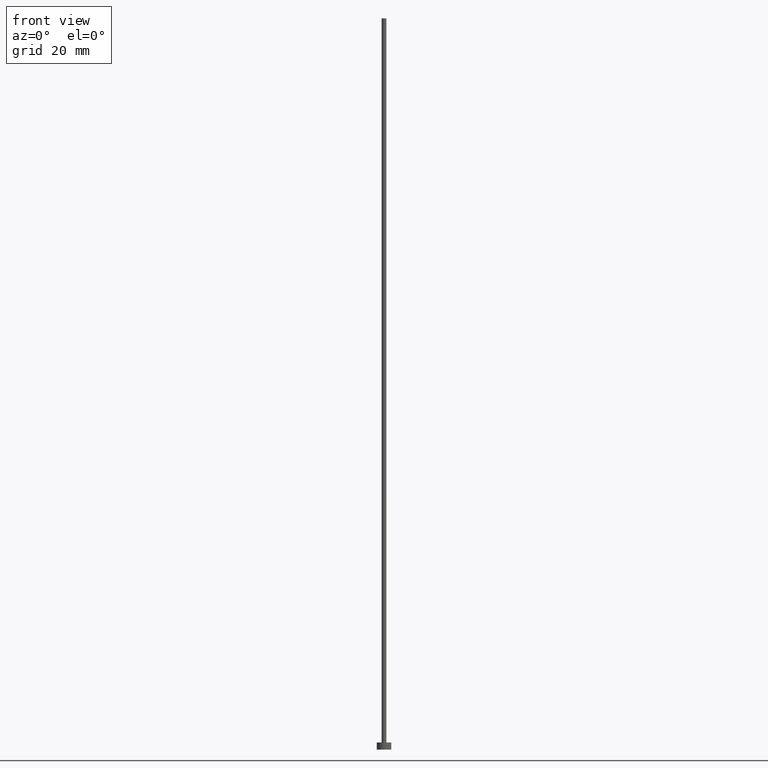
[diagram: clean part render]
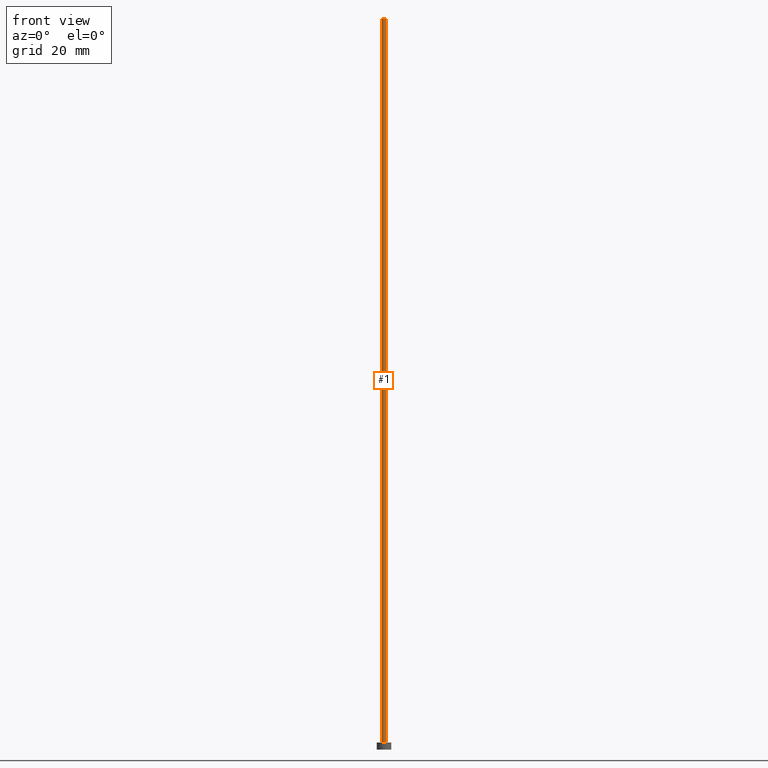
[diagram: same view with one face highlighted and labeled with its STEP entity id]
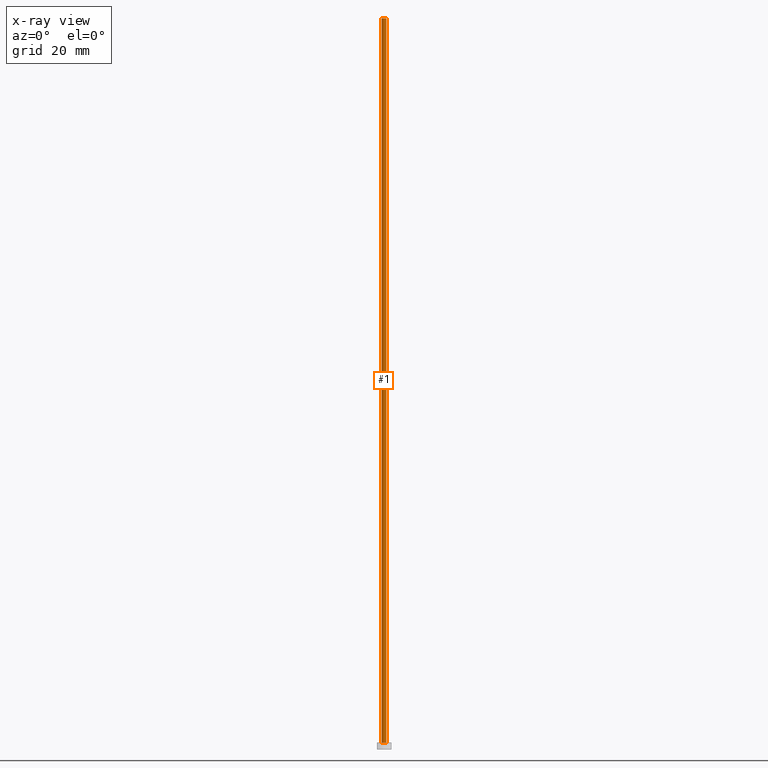
[diagram: x-ray of the same camera — body ghosted, the highlighted face saturated]
A machine part, front view. The second image highlights one B-rep face of the part: STEP entity #1.
The next image is the same camera in x-ray: the body ghosted, the highlighted face saturated — about 0% of this face is hidden behind the body in this view.
In plain terms, the highlighted cylindrical surface (edge-blend (fillet) strip) has radius 0.4 mm, axis along (-0, -0, -1).
Its self-contained STEP definition (entity closure, byte-faithful):
#1 = ADVANCED_FACE ( 'NONE', ( #242 ), #224, .T. ) ;
#7 = EDGE_CURVE ( 'NONE', #43, #165, #127, .T. ) ;
#12 = VECTOR ( 'NONE', #38, 1000.000000000000000 ) ;
#24 = CARTESIAN_POINT ( 'NONE',  ( 0.000000000000000000, 0.000000000000000000, 125.0000000000000000 ) ) ;
#31 = DIRECTION ( 'NONE',  ( -0.000000000000000000, -0.000000000000000000, -1.000000000000000000 ) ) ;
#38 = DIRECTION ( 'NONE',  ( -0.000000000000000000, -0.000000000000000000, -1.000000000000000000 ) ) ;
#43 = VERTEX_POINT ( 'NONE', #128 ) ;
#44 = ORIENTED_EDGE ( 'NONE', *, *, #7, .F. ) ;
#46 = CARTESIAN_POINT ( 'NONE',  ( 0.000000000000000000, 0.000000000000000000, 125.0000000000000000 ) ) ;
#47 = VERTEX_POINT ( 'NONE', #149 ) ;
#51 = CARTESIAN_POINT ( 'NONE',  ( 0.4000000000000000222, 4.898587196589413075E-17, 125.0000000000000000 ) ) ;
#63 = AXIS2_PLACEMENT_3D ( 'NONE', #24, #89, #243 ) ;
#79 = CARTESIAN_POINT ( 'NONE',  ( 0.000000000000000000, 0.000000000000000000, 1.199999999999999956 ) ) ;
#87 = DIRECTION ( 'NONE',  ( -1.000000000000000000, 0.000000000000000000, 0.000000000000000000 ) ) ;
#89 = DIRECTION ( 'NONE',  ( 0.000000000000000000, 0.000000000000000000, 1.000000000000000000 ) ) ;
#94 = LINE ( 'NONE', #229, #177 ) ;
#96 = AXIS2_PLACEMENT_3D ( 'NONE', #46, #31, #87 ) ;
#103 = VERTEX_POINT ( 'NONE', #255 ) ;
#126 = AXIS2_PLACEMENT_3D ( 'NONE', #79, #136, #140 ) ;
#127 = CIRCLE ( 'NONE', #63, 0.4000000000000000222 ) ;
#128 = CARTESIAN_POINT ( 'NONE',  ( -0.4000000000000000222, 0.000000000000000000, 125.0000000000000000 ) ) ;
#129 = CIRCLE ( 'NONE', #126, 0.4000000000000000222 ) ;
#136 = DIRECTION ( 'NONE',  ( 0.000000000000000000, 0.000000000000000000, 1.000000000000000000 ) ) ;
#137 = CARTESIAN_POINT ( 'NONE',  ( -0.4000000000000000222, 0.000000000000000000, 125.0000000000000000 ) ) ;
#138 = EDGE_CURVE ( 'NONE', #165, #103, #94, .T. ) ;
#140 = DIRECTION ( 'NONE',  ( 1.000000000000000000, 0.000000000000000000, 0.000000000000000000 ) ) ;
#141 = EDGE_CURVE ( 'NONE', #47, #103, #129, .T. ) ;
#144 = ORIENTED_EDGE ( 'NONE', *, *, #138, .F. ) ;
#148 = ORIENTED_EDGE ( 'NONE', *, *, #155, .T. ) ;
#149 = CARTESIAN_POINT ( 'NONE',  ( -0.4000000000000000222, 0.000000000000000000, 1.199999999999999956 ) ) ;
#155 = EDGE_CURVE ( 'NONE', #43, #47, #254, .T. ) ;
#165 = VERTEX_POINT ( 'NONE', #51 ) ;
#177 = VECTOR ( 'NONE', #179, 1000.000000000000000 ) ;
#179 = DIRECTION ( 'NONE',  ( -0.000000000000000000, -0.000000000000000000, -1.000000000000000000 ) ) ;
#201 = ORIENTED_EDGE ( 'NONE', *, *, #141, .T. ) ;
#204 = EDGE_LOOP ( 'NONE', ( #144, #44, #148, #201 ) ) ;
#224 = CYLINDRICAL_SURFACE ( 'NONE', #96, 0.4000000000000000222 ) ;
#229 = CARTESIAN_POINT ( 'NONE',  ( 0.4000000000000000222, 4.898587196589413075E-17, 125.0000000000000000 ) ) ;
#242 = FACE_OUTER_BOUND ( 'NONE', #204, .T. ) ;
#243 = DIRECTION ( 'NONE',  ( 1.000000000000000000, 0.000000000000000000, 0.000000000000000000 ) ) ;
#254 = LINE ( 'NONE', #137, #12 ) ;
#255 = CARTESIAN_POINT ( 'NONE',  ( 0.4000000000000000222, 4.898587196589413075E-17, 1.199999999999999956 ) ) ;